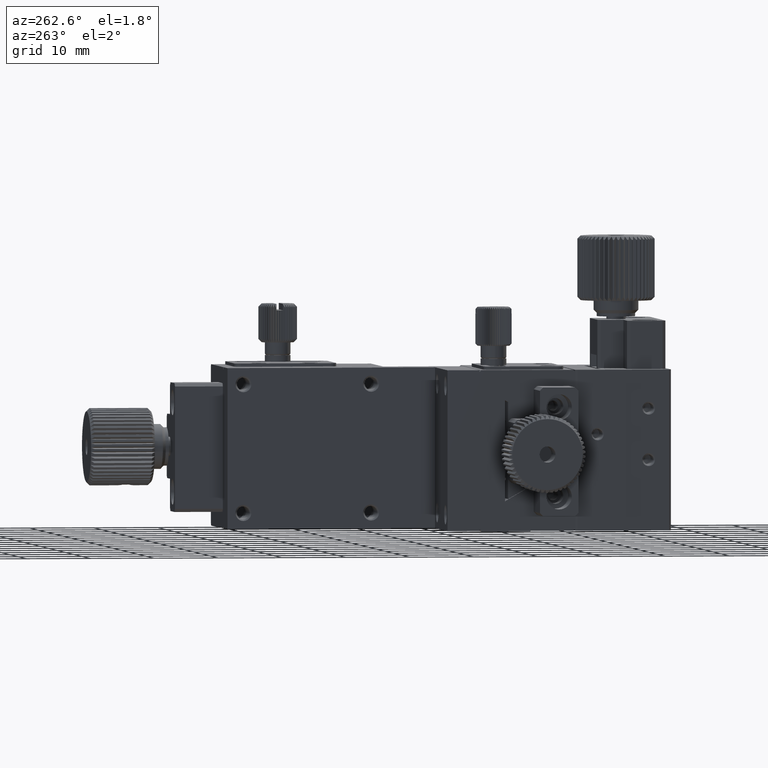
[diagram: clean part render]
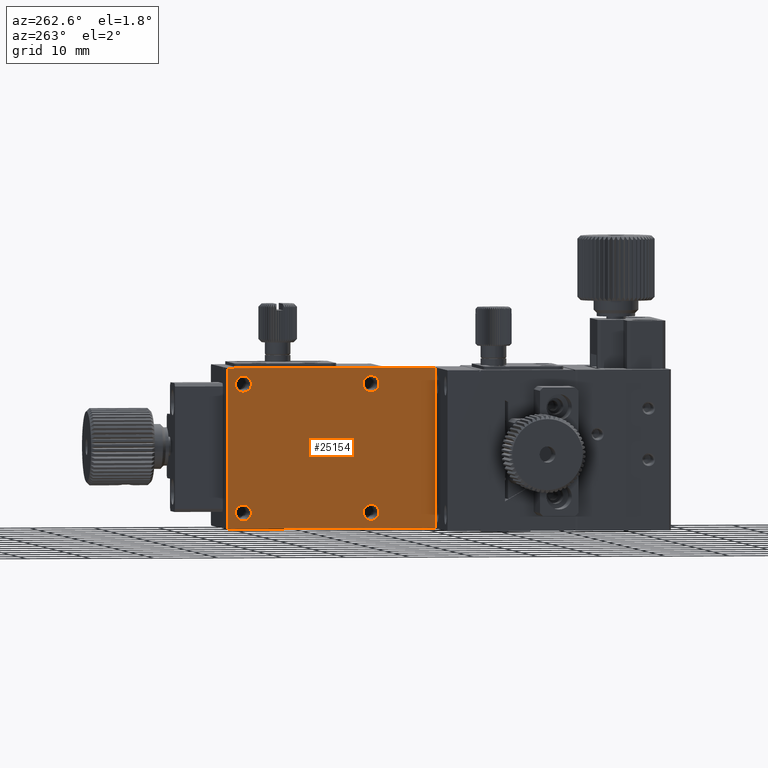
[diagram: same view with one face highlighted and labeled with its STEP entity id]
A machine part, auxiliary view. The second image highlights one B-rep face of the part: STEP entity #25154.
In plain terms, the highlighted planar face has unit normal (-1, 0, 0).
Its self-contained STEP definition (entity closure, byte-faithful):
#261 = AXIS2_PLACEMENT_3D ( 'NONE', #28174, #44888, #45407 ) ;
#638 = CARTESIAN_POINT ( 'NONE',  ( -4.999999999995452526, 35.00000000000000000, -22.50000000000000000 ) ) ;
#2162 = CARTESIAN_POINT ( 'NONE',  ( -5.000000000000000000, 0.000000000000000000, -25.00000000000000000 ) ) ;
#2505 = FACE_OUTER_BOUND ( 'NONE', #4866, .T. ) ;
#2620 = CIRCLE ( 'NONE', #30553, 1.249999999972715159 ) ;
#3325 = DIRECTION ( 'NONE',  ( 1.000000000000000000, -0.000000000000000000, -0.000000000000000000 ) ) ;
#3573 = PLANE ( 'NONE',  #261 ) ;
#4000 = VERTEX_POINT ( 'NONE', #8909 ) ;
#4568 = VERTEX_POINT ( 'NONE', #33893 ) ;
#4866 = EDGE_LOOP ( 'NONE', ( #9685, #39854, #37368, #47773 ) ) ;
#5101 = AXIS2_PLACEMENT_3D ( 'NONE', #638, #34567, #17316 ) ;
#6071 = CARTESIAN_POINT ( 'NONE',  ( -5.000000000000000000, 4.999999999999997335, -25.00000000000000000 ) ) ;
#6223 = EDGE_CURVE ( 'NONE', #4000, #4000, #12250, .T. ) ;
#6688 = VERTEX_POINT ( 'NONE', #29568 ) ;
#7581 = EDGE_CURVE ( 'NONE', #32974, #32974, #2620, .T. ) ;
#8066 = VECTOR ( 'NONE', #18844, 1000.000000000000000 ) ;
#8700 = CARTESIAN_POINT ( 'NONE',  ( -5.000000000000000000, 4.999999999999999112, 0.000000000000000000 ) ) ;
#8909 = CARTESIAN_POINT ( 'NONE',  ( -4.999999999995452526, 35.00000000000000000, -21.25000000000909495 ) ) ;
#9685 = ORIENTED_EDGE ( 'NONE', *, *, #50392, .T. ) ;
#10125 = EDGE_CURVE ( 'NONE', #51290, #51290, #28252, .T. ) ;
#10130 = EDGE_CURVE ( 'NONE', #4568, #39349, #40810, .T. ) ;
#11203 = LINE ( 'NONE', #2162, #8066 ) ;
#12250 = CIRCLE ( 'NONE', #5101, 1.249999999990904165 ) ;
#12322 = CARTESIAN_POINT ( 'NONE',  ( -5.000000000000000000, 37.50000000000000000, -25.00000000000000000 ) ) ;
#12549 = VECTOR ( 'NONE', #23818, 1000.000000000000000 ) ;
#13652 = EDGE_LOOP ( 'NONE', ( #40637 ) ) ;
#14342 = CARTESIAN_POINT ( 'NONE',  ( -4.999999999995452526, 15.00000000000000000, -21.25000000000909495 ) ) ;
#15912 = CARTESIAN_POINT ( 'NONE',  ( -5.000000000000000000, 37.50000000000000000, -25.00000000000000000 ) ) ;
#17316 = DIRECTION ( 'NONE',  ( 0.000000000000000000, 0.000000000000000000, 1.000000000000000000 ) ) ;
#18484 = EDGE_CURVE ( 'NONE', #35681, #35681, #47994, .T. ) ;
#18844 = DIRECTION ( 'NONE',  ( 0.000000000000000000, -1.000000000000000000, -0.000000000000000000 ) ) ;
#18883 = EDGE_CURVE ( 'NONE', #27822, #4568, #41361, .T. ) ;
#19175 = CARTESIAN_POINT ( 'NONE',  ( -4.999999999995452526, 15.00000000000000000, -22.50000000000000000 ) ) ;
#19328 = ORIENTED_EDGE ( 'NONE', *, *, #10125, .T. ) ;
#21158 = DIRECTION ( 'NONE',  ( 1.000000000000000000, -0.000000000000000000, -0.000000000000000000 ) ) ;
#22549 = DIRECTION ( 'NONE',  ( 1.000000000000000000, -0.000000000000000000, -0.000000000000000000 ) ) ;
#23818 = DIRECTION ( 'NONE',  ( 0.000000000000000000, -1.000000000000000000, -0.000000000000000000 ) ) ;
#24342 = FACE_BOUND ( 'NONE', #13652, .T. ) ;
#24409 = AXIS2_PLACEMENT_3D ( 'NONE', #29644, #21158, #32942 ) ;
#25154 = ADVANCED_FACE ( 'NONE', ( #2505, #32848, #24342, #36430, #48700 ), #3573, .T. ) ;
#27274 = EDGE_LOOP ( 'NONE', ( #39393 ) ) ;
#27822 = VERTEX_POINT ( 'NONE', #12322 ) ;
#27935 = VECTOR ( 'NONE', #37000, 1000.000000000000000 ) ;
#28174 = CARTESIAN_POINT ( 'NONE',  ( -5.000000000000000000, 37.50000000000000000, -25.00000000000000000 ) ) ;
#28203 = ORIENTED_EDGE ( 'NONE', *, *, #6223, .T. ) ;
#28252 = CIRCLE ( 'NONE', #49236, 1.249999999990904165 ) ;
#29568 = CARTESIAN_POINT ( 'NONE',  ( -5.000000000000000000, 4.999999999999999112, -25.00000000000000000 ) ) ;
#29644 = CARTESIAN_POINT ( 'NONE',  ( -4.999999999995452526, 15.00000000000000000, -2.500000000000000000 ) ) ;
#30553 = AXIS2_PLACEMENT_3D ( 'NONE', #31302, #22549, #35156 ) ;
#31302 = CARTESIAN_POINT ( 'NONE',  ( -4.999999999995452526, 35.00000000000000000, -2.500000000000000000 ) ) ;
#32061 = EDGE_LOOP ( 'NONE', ( #19328 ) ) ;
#32848 = FACE_BOUND ( 'NONE', #27274, .T. ) ;
#32942 = DIRECTION ( 'NONE',  ( 0.000000000000000000, 0.000000000000000000, 1.000000000000000000 ) ) ;
#32974 = VERTEX_POINT ( 'NONE', #49656 ) ;
#33893 = CARTESIAN_POINT ( 'NONE',  ( -5.000000000000000000, 37.50000000000000000, 0.000000000000000000 ) ) ;
#34567 = DIRECTION ( 'NONE',  ( 1.000000000000000000, -0.000000000000000000, -0.000000000000000000 ) ) ;
#35156 = DIRECTION ( 'NONE',  ( 0.000000000000000000, 0.000000000000000000, 1.000000000000000000 ) ) ;
#35681 = VERTEX_POINT ( 'NONE', #52366 ) ;
#35888 = DIRECTION ( 'NONE',  ( 0.000000000000000000, 0.000000000000000000, 1.000000000000000000 ) ) ;
#36430 = FACE_BOUND ( 'NONE', #39163, .T. ) ;
#37000 = DIRECTION ( 'NONE',  ( 0.000000000000000000, -0.000000000000000000, 1.000000000000000000 ) ) ;
#37368 = ORIENTED_EDGE ( 'NONE', *, *, #10130, .F. ) ;
#38632 = DIRECTION ( 'NONE',  ( 0.000000000000000000, 0.000000000000000000, 1.000000000000000000 ) ) ;
#39163 = EDGE_LOOP ( 'NONE', ( #28203 ) ) ;
#39349 = VERTEX_POINT ( 'NONE', #8700 ) ;
#39393 = ORIENTED_EDGE ( 'NONE', *, *, #18484, .T. ) ;
#39854 = ORIENTED_EDGE ( 'NONE', *, *, #46097, .T. ) ;
#40637 = ORIENTED_EDGE ( 'NONE', *, *, #7581, .T. ) ;
#40810 = LINE ( 'NONE', #52580, #12549 ) ;
#41361 = LINE ( 'NONE', #15912, #27935 ) ;
#44888 = DIRECTION ( 'NONE',  ( -1.000000000000000000, 0.000000000000000000, 0.000000000000000000 ) ) ;
#45407 = DIRECTION ( 'NONE',  ( 0.000000000000000000, 0.000000000000000000, 1.000000000000000000 ) ) ;
#46097 = EDGE_CURVE ( 'NONE', #6688, #39349, #46822, .T. ) ;
#46822 = LINE ( 'NONE', #6071, #50592 ) ;
#47773 = ORIENTED_EDGE ( 'NONE', *, *, #18883, .F. ) ;
#47994 = CIRCLE ( 'NONE', #24409, 1.249999999972715159 ) ;
#48700 = FACE_BOUND ( 'NONE', #32061, .T. ) ;
#49236 = AXIS2_PLACEMENT_3D ( 'NONE', #19175, #3325, #35888 ) ;
#49656 = CARTESIAN_POINT ( 'NONE',  ( -4.999999999995452526, 35.00000000000000000, -1.250000000027284841 ) ) ;
#50392 = EDGE_CURVE ( 'NONE', #27822, #6688, #11203, .T. ) ;
#50592 = VECTOR ( 'NONE', #38632, 1000.000000000000000 ) ;
#51290 = VERTEX_POINT ( 'NONE', #14342 ) ;
#52366 = CARTESIAN_POINT ( 'NONE',  ( -4.999999999995452526, 15.00000000000000000, -1.250000000027284841 ) ) ;
#52580 = CARTESIAN_POINT ( 'NONE',  ( -5.000000000000000000, 0.000000000000000000, 0.000000000000000000 ) ) ;